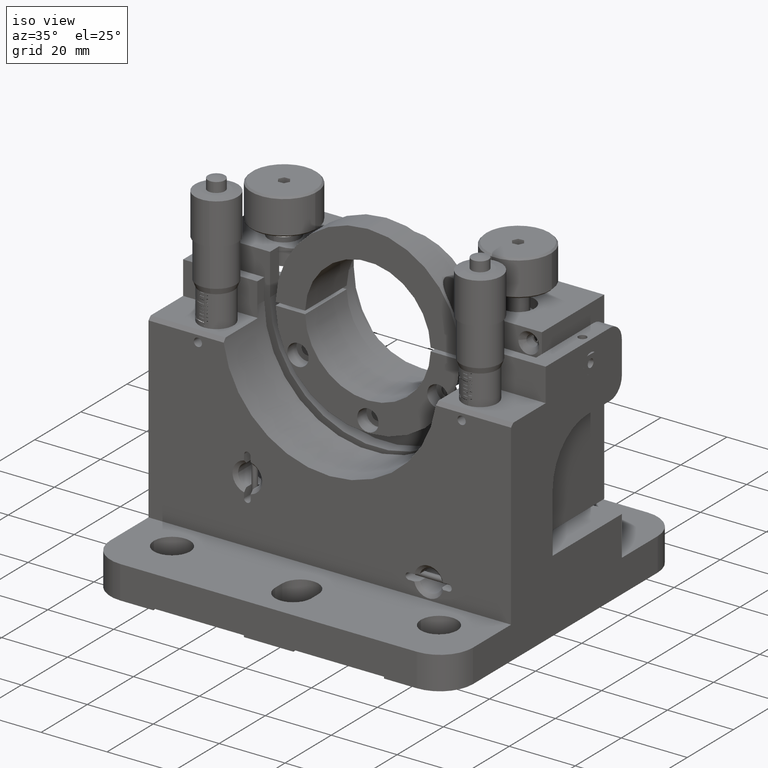
[diagram: clean part render]
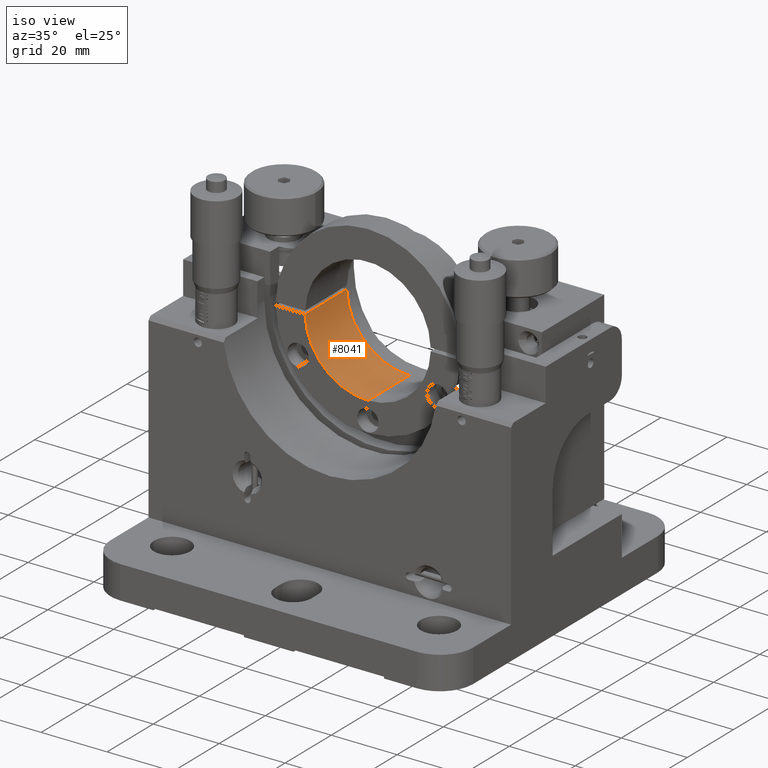
[diagram: same view with one face highlighted and labeled with its STEP entity id]
A machine part, iso view. The second image highlights one B-rep face of the part: STEP entity #8041.
In plain terms, the highlighted cylindrical surface (partial cylindrical patch) has radius 19.05 mm, axis along (-0, -1, -0).
Its self-contained STEP definition (entity closure, byte-faithful):
#48 = VERTEX_POINT ( 'NONE', #16024 ) ;
#327 = CARTESIAN_POINT ( 'NONE',  ( -4.093947403305264700E-013, -6.980000000001359300, -39.93971963390981700 ) ) ;
#1070 = EDGE_CURVE ( 'NONE', #1167, #10830, #3130, .T. ) ;
#1167 = VERTEX_POINT ( 'NONE', #6897 ) ;
#1438 = CARTESIAN_POINT ( 'NONE',  ( -4.093947403305264700E-013, 11.01999999999864200, -39.93971963390981700 ) ) ;
#1684 = LINE ( 'NONE', #14979, #2070 ) ;
#2070 = VECTOR ( 'NONE', #5046, 1000.000000000000000 ) ;
#2823 = CARTESIAN_POINT ( 'NONE',  ( -4.093947403305264700E-013, -6.980000000001359300, -20.88971963390981700 ) ) ;
#3130 = CIRCLE ( 'NONE', #5782, 19.05000000000000100 ) ;
#4995 = EDGE_CURVE ( 'NONE', #48, #8351, #9667, .T. ) ;
#5005 = ORIENTED_EDGE ( 'NONE', *, *, #1070, .T. ) ;
#5046 = DIRECTION ( 'NONE',  ( -0.0000000000000000000, -1.000000000000000000, -0.0000000000000000000 ) ) ;
#5133 = CARTESIAN_POINT ( 'NONE',  ( -4.093947403305264700E-013, 11.01999999999864200, -20.88971963390981700 ) ) ;
#5334 = DIRECTION ( 'NONE',  ( 0.0000000000000000000, -1.000000000000000000, 0.0000000000000000000 ) ) ;
#5782 = AXIS2_PLACEMENT_3D ( 'NONE', #2823, #5334, #12882 ) ;
#6897 = CARTESIAN_POINT ( 'NONE',  ( -19.04343718975163600, -6.980000000001359300, -21.38971963390981700 ) ) ;
#7254 = DIRECTION ( 'NONE',  ( 0.0000000000000000000, -1.000000000000000000, 0.0000000000000000000 ) ) ;
#7666 = DIRECTION ( 'NONE',  ( 0.0000000000000000000, 0.0000000000000000000, -1.000000000000000000 ) ) ;
#8041 = ADVANCED_FACE ( 'NONE', ( #14598 ), #8383, .F. ) ;
#8351 = VERTEX_POINT ( 'NONE', #1438 ) ;
#8383 = CYLINDRICAL_SURFACE ( 'NONE', #11643, 19.05000000000000100 ) ;
#9098 = EDGE_CURVE ( 'NONE', #8351, #10830, #11680, .T. ) ;
#9667 = CIRCLE ( 'NONE', #15366, 19.05000000000000100 ) ;
#10122 = ORIENTED_EDGE ( 'NONE', *, *, #9098, .F. ) ;
#10524 = EDGE_CURVE ( 'NONE', #48, #1167, #1684, .T. ) ;
#10559 = DIRECTION ( 'NONE',  ( -0.0000000000000000000, -1.000000000000000000, -0.0000000000000000000 ) ) ;
#10570 = CARTESIAN_POINT ( 'NONE',  ( -4.093947403305264700E-013, 11.01999999999864200, -39.93971963390981700 ) ) ;
#10830 = VERTEX_POINT ( 'NONE', #327 ) ;
#11643 = AXIS2_PLACEMENT_3D ( 'NONE', #5133, #10559, #7666 ) ;
#11680 = LINE ( 'NONE', #10570, #16117 ) ;
#12882 = DIRECTION ( 'NONE',  ( 0.0000000000000000000, 0.0000000000000000000, -1.000000000000000000 ) ) ;
#13311 = DIRECTION ( 'NONE',  ( -0.0000000000000000000, -1.000000000000000000, -0.0000000000000000000 ) ) ;
#13708 = DIRECTION ( 'NONE',  ( 0.0000000000000000000, 0.0000000000000000000, -1.000000000000000000 ) ) ;
#14560 = EDGE_LOOP ( 'NONE', ( #10122, #15256, #15904, #5005 ) ) ;
#14598 = FACE_OUTER_BOUND ( 'NONE', #14560, .T. ) ;
#14695 = CARTESIAN_POINT ( 'NONE',  ( -4.093947403305264700E-013, 11.01999999999864200, -20.88971963390981700 ) ) ;
#14979 = CARTESIAN_POINT ( 'NONE',  ( -19.04343718975163600, 11.01999999999864200, -21.38971963390981700 ) ) ;
#15256 = ORIENTED_EDGE ( 'NONE', *, *, #4995, .F. ) ;
#15366 = AXIS2_PLACEMENT_3D ( 'NONE', #14695, #7254, #13708 ) ;
#15904 = ORIENTED_EDGE ( 'NONE', *, *, #10524, .T. ) ;
#16024 = CARTESIAN_POINT ( 'NONE',  ( -19.04343718975163600, 11.01999999999864200, -21.38971963390982000 ) ) ;
#16117 = VECTOR ( 'NONE', #13311, 1000.000000000000000 ) ;